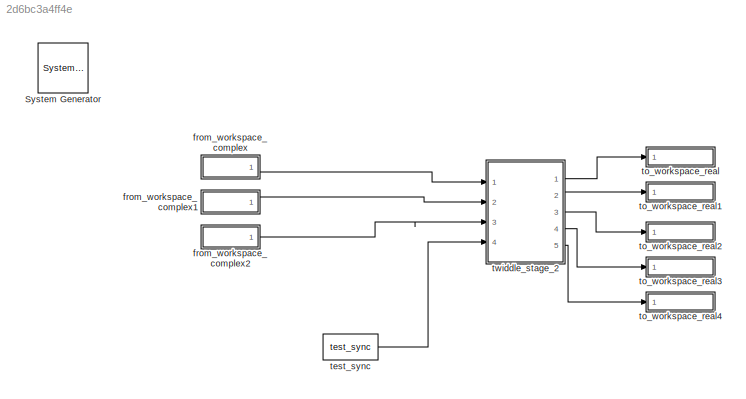
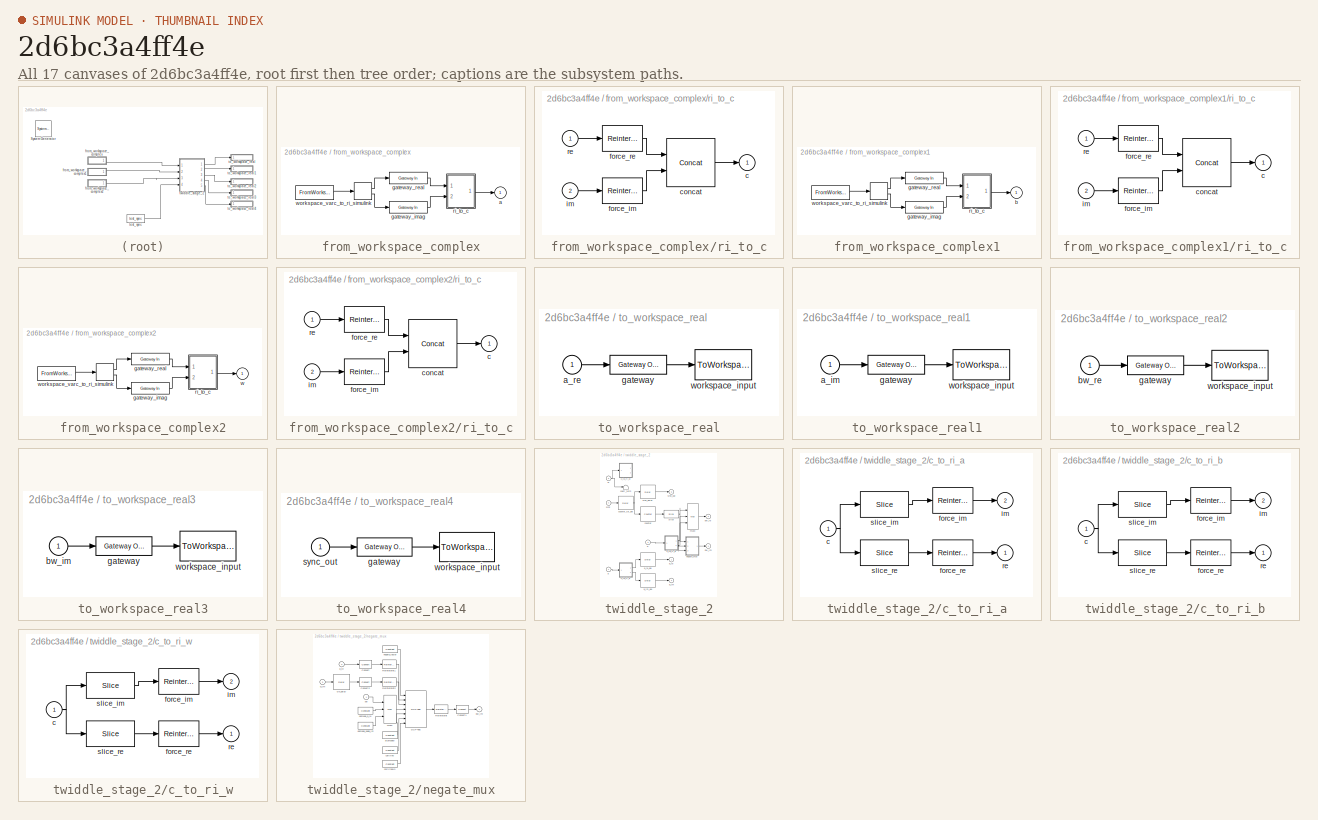
[diagram: thumbnail index - all 17 canvases of the model, root first then tree order]
MODEL slx_2d6bc3a4ff4e
KIND model
BLOCK [Reference]  System Generator  REF=xbsIndex_r4/ System Generator
  AttributesFormatString = System\nGenerator
  Impl_file = ISE Defaults
  Ports = []
  SourceBlock = xbsIndex_r4/ System Generator
  SourceType = Xilinx System Generator Block
  Synth_file = XST Defaults
  Tag = genX
  UserDataPersistent = on
  block_type = sysgen
  clock_wrapper = Clock Enables
  core_generation = According to Block Masks
  dbl_ovrd = According to Block Masks
  dcm_input_clock_period = 10
  deprecated_control = off
  directory = ./netlist
  eval_field = 0
  has_advanced_control = 0
  incr_netlist = off
  infoedit = System Generator
  package = fbg676
  part = xc7k325t
  proj_type = Project Navigator
  run_coregen = off
  sg_icon_stat = 50,50,0,0,token,white,0,58c5b5770fe5f7c311f53dbc6e73f0f6,right,,[ ],[ ]
  sg_mask_display = fprintf('','COMMENT: begin icon graphics');\npatch([0 50 50 0 0 ],[0 0 50 50 0 ],[1 1 1 ]);\npatch([1.6375 16.81 27.31 37.81 48.31 27.31 12.1375 1.6375 ],[36.655 36.655 47.155 36.655 47.155 47.155 47.155 36.655 ],[0.933333 0.203922 0.141176 ]);\npatch([12.1375 27.31 16.81 1.6375 12.1375 ],[26.155 26.155 36.655 36.655 26.155 ],[0.698039 0.0313725 0.219608 ]);\npatch([1.6375 16.81 27.31 12.1375 1.6375 ]...<+328ch>
  sggui_pos = -1,-1,-1,-1
  simulink_period = 1
  speed = -3
  synthesis_tool = XST
  sysclk_period = 10
  testbench = off
  trim_vbits = Everywhere in SubSystem
  xilinxfamily = Kintex7
BLOCK [SubSystem] from_workspace_complex
  FunctionWithSeparateData = off
  MaskHideContents = off
  MinAlgLoopOccurrences = off
  Opaque = off
  Ports = [0, 1]
  PropExecContextOutsideSubsystem = off
  RTWSystemCode = Auto
  RequestExecContextInheritance = off
  UserDataPersistent = on
BLOCK [Outport] from_workspace_complex/a
  IconDisplay = Port number
BLOCK [ComplexToRealImag] from_workspace_complex/c_to_ri_simulink
  Ports = [1, 2]
BLOCK [Reference] from_workspace_complex/gateway_imag  REF=xbsIndex_r4/Gateway In
  ADCChannel = '1'
  LOCs = {}
  Ports = [1, 1]
  SourceBlock = xbsIndex_r4/Gateway In
  SourceType = Xilinx Gateway In Block
  UseAsADC = off
  arith_type = Signed  (2's comp)
  bin_pt = 17
  block_type = gatewayin
  dbl_ovrd = off
  exp_width = 8
  frac_width = 24
  gui_display_data_type = Fixed-point
  has_advanced_control = 0
  hdl_port = on
  infoedit = Gateway in block.  Converts inputs of type Simulink integer, single, double and fixed-point to  Xilinx fixed-point or floating-point data type.<br><br>Hardware notes:  In hardware these blocks become top level input ports.  <repeated x6 — deduplicated; at blocks: gateway_imag, gateway_real>
  inherit_from_input = off
  locs_specified = off
  n_bits = 18
  overflow = Wrap
  period = 1
  preci_type = Single
  quantization = Truncate
  sg_icon_stat = 65,20,1,1,white,yellow,1,00d3666e,right,,[ ],[ ]
  sg_mask_display = fprintf('','COMMENT: begin icon graphics');\npatch([0 65 65 0 0 ],[0 0 20 20 0 ],[0.95 0.93 0.65 ]);\nplot([0 65 65 0 0 ],[0 0 20 20 0 ]);\npatch([27.55 30.44 32.44 34.44 36.44 32.44 29.55 27.55 ],[12.22 12.22 14.22 12.22 14.22 14.22 14.22 12.22 ],[1 1 1 ]);\npatch([29.55 32.44 30.44 27.55 29.55 ],[10.22 10.22 12.22 12.22 10.22 ],[0.985 0.979 0.895 ]);\npatch([27.55 30.44 32.44 29.55 27.55 ],[8.22 8.22...<+383ch>  <repeated x6 — deduplicated; at blocks: gateway_imag, gateway_real>
  sggui_pos = -1,-1,-1,-1
  timing_constraint = None
  xl_area = [0,0,0,0,0,0,0]
  xl_use_area = off
BLOCK [Reference] from_workspace_complex/gateway_real  REF=xbsIndex_r4/Gateway In
  ADCChannel = '1'
  LOCs = {}
  Ports = [1, 1]
  SourceBlock = xbsIndex_r4/Gateway In
  SourceType = Xilinx Gateway In Block
  UseAsADC = off
  arith_type = Signed  (2's comp)
  bin_pt = 17
  block_type = gatewayin
  dbl_ovrd = off
  exp_width = 8
  frac_width = 24
  gui_display_data_type = Fixed-point
  has_advanced_control = 0
  hdl_port = on
  inherit_from_input = off
  locs_specified = off
  n_bits = 18
  overflow = Wrap
  period = 1
  preci_type = Single
  quantization = Truncate
  sg_icon_stat = 65,20,1,1,white,yellow,1,00d3666e,right,,[ ],[ ]
  sggui_pos = -1,-1,-1,-1
  timing_constraint = None
  xl_area = [0,0,0,0,0,0,0]
  xl_use_area = off
BLOCK [SubSystem] from_workspace_complex/ri_to_c
  FunctionWithSeparateData = off
  MaskHideContents = off
  MinAlgLoopOccurrences = off
  Opaque = off
  Ports = [2, 1]
  PropExecContextOutsideSubsystem = off
  RTWSystemCode = Auto
  RequestExecContextInheritance = off
BLOCK [Outport] from_workspace_complex/ri_to_c/c
  IconDisplay = Port number
BLOCK [Reference] from_workspace_complex/ri_to_c/concat  REF=xbsIndex_r4/Concat
  Ports = [2, 1]
  SourceBlock = xbsIndex_r4/Concat
  SourceType = Xilinx Bus Concatenator Block
  block_type = concat
  dbl_ovrd = off
  has_advanced_control = 0
  infoedit = Concatenates two or more inputs.  Output will be cast to an unsigned value with the binary point at zero.
  num_inputs = 2
  sg_icon_stat = 60,60,2,1,white,blue,0,16398980,right,,[ ],[ ]
  sg_mask_display = fprintf('','COMMENT: begin icon graphics');\npatch([0 60 60 0 0 ],[0 0 60 60 0 ],[0.77 0.82 0.91 ]);\nplot([0 60 60 0 0 ],[0 0 60 60 0 ]);\npatch([12.2 23.76 31.76 39.76 47.76 31.76 20.2 12.2 ],[38.88 38.88 46.88 38.88 46.88 46.88 46.88 38.88 ],[1 1 1 ]);\npatch([20.2 31.76 23.76 12.2 20.2 ],[30.88 30.88 38.88 38.88 30.88 ],[0.931 0.946 0.973 ]);\npatch([12.2 23.76 31.76 20.2 12.2 ],[22.88 22.88 30.88 ...<+402ch>  <repeated x3 — deduplicated; at blocks: concat>
  sggui_pos = -1,-1,-1,-1
BLOCK [Reference] from_workspace_complex/ri_to_c/force_im  REF=xbsIndex_r4/Reinterpret
  Ports = [1, 1]
  SourceBlock = xbsIndex_r4/Reinterpret
  SourceType = Xilinx Type Reinterpreter Block
  arith_type = Unsigned
  bin_pt = 0
  block_type = reinterpret
  force_arith_type = on
  force_bin_pt = on
  has_advanced_control = 0
  infoedit = Changes signal type without altering the binary representation.   You can change the signal between signed and unsigned, and relocate the binary point.<br><br>Hardware notes: In hardware this block costs nothing.<br><br>Example:  Suppose the input is 6 bits wide, signed, with 2 fractional bits, and the output is forced to unsigned with 0 fractional bits.  Then an input of -2.0 (1110.00 in binary 2...<+58ch>  <repeated x15 — deduplicated; at blocks: force_im, force_re, Reinterpret, Reinterpret1, Reinterpret2>
  sg_icon_stat = 50,32,1,1,white,blue,0,6b04d0b0,right,,[ ],[ ]
  sg_mask_display = fprintf('','COMMENT: begin icon graphics');\npatch([0 50 50 0 0 ],[0 0 32 32 0 ],[0.77 0.82 0.91 ]);\nplot([0 50 50 0 0 ],[0 0 32 32 0 ]);\npatch([16.1 21.88 25.88 29.88 33.88 25.88 20.1 16.1 ],[20.44 20.44 24.44 20.44 24.44 24.44 24.44 20.44 ],[1 1 1 ]);\npatch([20.1 25.88 21.88 16.1 20.1 ],[16.44 16.44 20.44 20.44 16.44 ],[0.931 0.946 0.973 ]);\npatch([16.1 21.88 25.88 20.1 16.1 ],[12.44 12.44 16.44 ...<+294ch>  <repeated x15 — deduplicated; at blocks: force_im, force_re, Reinterpret, Reinterpret1, Reinterpret2>
  sggui_pos = -1,-1,-1,-1
BLOCK [Reference] from_workspace_complex/ri_to_c/force_re  REF=xbsIndex_r4/Reinterpret
  Ports = [1, 1]
  SourceBlock = xbsIndex_r4/Reinterpret
  SourceType = Xilinx Type Reinterpreter Block
  arith_type = Unsigned
  bin_pt = 0
  block_type = reinterpret
  force_arith_type = on
  force_bin_pt = on
  has_advanced_control = 0
  sg_icon_stat = 50,32,1,1,white,blue,0,6b04d0b0,right,,[ ],[ ]
  sggui_pos = -1,-1,-1,-1
BLOCK [Inport] from_workspace_complex/ri_to_c/im
  IconDisplay = Port number
  Port = 2
BLOCK [Inport] from_workspace_complex/ri_to_c/re
  IconDisplay = Port number
BLOCK [FromWorkspace] from_workspace_complex/workspace_var
  SampleTime = 0
  VariableName = a
  ZeroCross = on
BLOCK [SubSystem] from_workspace_complex1
  FunctionWithSeparateData = off
  MaskHideContents = off
  MinAlgLoopOccurrences = off
  Opaque = off
  Ports = [0, 1]
  PropExecContextOutsideSubsystem = off
  RTWSystemCode = Auto
  RequestExecContextInheritance = off
  UserDataPersistent = on
BLOCK [Outport] from_workspace_complex1/b
  IconDisplay = Port number
BLOCK [ComplexToRealImag] from_workspace_complex1/c_to_ri_simulink
  Ports = [1, 2]
BLOCK [Reference] from_workspace_complex1/gateway_imag  REF=xbsIndex_r4/Gateway In
  ADCChannel = '1'
  LOCs = {}
  Ports = [1, 1]
  SourceBlock = xbsIndex_r4/Gateway In
  SourceType = Xilinx Gateway In Block
  UseAsADC = off
  arith_type = Signed  (2's comp)
  bin_pt = 17
  block_type = gatewayin
  dbl_ovrd = off
  exp_width = 8
  frac_width = 24
  gui_display_data_type = Fixed-point
  has_advanced_control = 0
  hdl_port = on
  inherit_from_input = off
  locs_specified = off
  n_bits = 18
  overflow = Wrap
  period = 1
  preci_type = Single
  quantization = Truncate
  sg_icon_stat = 65,20,1,1,white,yellow,1,00d3666e,right,,[ ],[ ]
  sggui_pos = -1,-1,-1,-1
  timing_constraint = None
  xl_area = [0,0,0,0,0,0,0]
  xl_use_area = off
BLOCK [Reference] from_workspace_complex1/gateway_real  REF=xbsIndex_r4/Gateway In
  ADCChannel = '1'
  LOCs = {}
  Ports = [1, 1]
  SourceBlock = xbsIndex_r4/Gateway In
  SourceType = Xilinx Gateway In Block
  UseAsADC = off
  arith_type = Signed  (2's comp)
  bin_pt = 17
  block_type = gatewayin
  dbl_ovrd = off
  exp_width = 8
  frac_width = 24
  gui_display_data_type = Fixed-point
  has_advanced_control = 0
  hdl_port = on
  inherit_from_input = off
  locs_specified = off
  n_bits = 18
  overflow = Wrap
  period = 1
  preci_type = Single
  quantization = Truncate
  sg_icon_stat = 65,20,1,1,white,yellow,1,00d3666e,right,,[ ],[ ]
  sggui_pos = -1,-1,-1,-1
  timing_constraint = None
  xl_area = [0,0,0,0,0,0,0]
  xl_use_area = off
BLOCK [SubSystem] from_workspace_complex1/ri_to_c
  FunctionWithSeparateData = off
  MaskHideContents = off
  MinAlgLoopOccurrences = off
  Opaque = off
  Ports = [2, 1]
  PropExecContextOutsideSubsystem = off
  RTWSystemCode = Auto
  RequestExecContextInheritance = off
BLOCK [Outport] from_workspace_complex1/ri_to_c/c
  IconDisplay = Port number
BLOCK [Reference] from_workspace_complex1/ri_to_c/concat  REF=xbsIndex_r4/Concat
  Ports = [2, 1]
  SourceBlock = xbsIndex_r4/Concat
  SourceType = Xilinx Bus Concatenator Block
  block_type = concat
  dbl_ovrd = off
  has_advanced_control = 0
  infoedit = Concatenates two or more inputs.  Output will be cast to an unsigned value with the binary point at zero.
  num_inputs = 2
  sg_icon_stat = 60,60,2,1,white,blue,0,16398980,right,,[ ],[ ]
  sggui_pos = -1,-1,-1,-1
BLOCK [Reference] from_workspace_complex1/ri_to_c/force_im  REF=xbsIndex_r4/Reinterpret
  Ports = [1, 1]
  SourceBlock = xbsIndex_r4/Reinterpret
  SourceType = Xilinx Type Reinterpreter Block
  arith_type = Unsigned
  bin_pt = 0
  block_type = reinterpret
  force_arith_type = on
  force_bin_pt = on
  has_advanced_control = 0
  sg_icon_stat = 50,32,1,1,white,blue,0,6b04d0b0,right,,[ ],[ ]
  sggui_pos = -1,-1,-1,-1
BLOCK [Reference] from_workspace_complex1/ri_to_c/force_re  REF=xbsIndex_r4/Reinterpret
  Ports = [1, 1]
  SourceBlock = xbsIndex_r4/Reinterpret
  SourceType = Xilinx Type Reinterpreter Block
  arith_type = Unsigned
  bin_pt = 0
  block_type = reinterpret
  force_arith_type = on
  force_bin_pt = on
  has_advanced_control = 0
  sg_icon_stat = 50,32,1,1,white,blue,0,6b04d0b0,right,,[ ],[ ]
  sggui_pos = -1,-1,-1,-1
BLOCK [Inport] from_workspace_complex1/ri_to_c/im
  IconDisplay = Port number
  Port = 2
BLOCK [Inport] from_workspace_complex1/ri_to_c/re
  IconDisplay = Port number
BLOCK [FromWorkspace] from_workspace_complex1/workspace_var
  SampleTime = 0
  VariableName = b
  ZeroCross = on
BLOCK [SubSystem] from_workspace_complex2
  FunctionWithSeparateData = off
  MaskHideContents = off
  MinAlgLoopOccurrences = off
  Opaque = off
  Ports = [0, 1]
  PropExecContextOutsideSubsystem = off
  RTWSystemCode = Auto
  RequestExecContextInheritance = off
  UserDataPersistent = on
BLOCK [ComplexToRealImag] from_workspace_complex2/c_to_ri_simulink
  Ports = [1, 2]
BLOCK [Reference] from_workspace_complex2/gateway_imag  REF=xbsIndex_r4/Gateway In
  ADCChannel = '1'
  LOCs = {}
  Ports = [1, 1]
  SourceBlock = xbsIndex_r4/Gateway In
  SourceType = Xilinx Gateway In Block
  UseAsADC = off
  arith_type = Signed  (2's comp)
  bin_pt = 17
  block_type = gatewayin
  dbl_ovrd = off
  exp_width = 8
  frac_width = 24
  gui_display_data_type = Fixed-point
  has_advanced_control = 0
  hdl_port = on
  inherit_from_input = off
  locs_specified = off
  n_bits = 18
  overflow = Wrap
  period = 1
  preci_type = Single
  quantization = Truncate
  sg_icon_stat = 65,20,1,1,white,yellow,1,00d3666e,right,,[ ],[ ]
  sggui_pos = -1,-1,-1,-1
  timing_constraint = None
  xl_area = [0,0,0,0,0,0,0]
  xl_use_area = off
BLOCK [Reference] from_workspace_complex2/gateway_real  REF=xbsIndex_r4/Gateway In
  ADCChannel = '1'
  LOCs = {}
  Ports = [1, 1]
  SourceBlock = xbsIndex_r4/Gateway In
  SourceType = Xilinx Gateway In Block
  UseAsADC = off
  arith_type = Signed  (2's comp)
  bin_pt = 17
  block_type = gatewayin
  dbl_ovrd = off
  exp_width = 8
  frac_width = 24
  gui_display_data_type = Fixed-point
  has_advanced_control = 0
  hdl_port = on
  inherit_from_input = off
  locs_specified = off
  n_bits = 18
  overflow = Wrap
  period = 1
  preci_type = Single
  quantization = Truncate
  sg_icon_stat = 65,20,1,1,white,yellow,1,00d3666e,right,,[ ],[ ]
  sggui_pos = -1,-1,-1,-1
  timing_constraint = None
  xl_area = [0,0,0,0,0,0,0]
  xl_use_area = off
BLOCK [SubSystem] from_workspace_complex2/ri_to_c
  FunctionWithSeparateData = off
  MaskHideContents = off
  MinAlgLoopOccurrences = off
  Opaque = off
  Ports = [2, 1]
  PropExecContextOutsideSubsystem = off
  RTWSystemCode = Auto
  RequestExecContextInheritance = off
BLOCK [Outport] from_workspace_complex2/ri_to_c/c
  IconDisplay = Port number
BLOCK [Reference] from_workspace_complex2/ri_to_c/concat  REF=xbsIndex_r4/Concat
  Ports = [2, 1]
  SourceBlock = xbsIndex_r4/Concat
  SourceType = Xilinx Bus Concatenator Block
  block_type = concat
  dbl_ovrd = off
  has_advanced_control = 0
  infoedit = Concatenates two or more inputs.  Output will be cast to an unsigned value with the binary point at zero.
  num_inputs = 2
  sg_icon_stat = 60,60,2,1,white,blue,0,16398980,right,,[ ],[ ]
  sggui_pos = -1,-1,-1,-1
BLOCK [Reference] from_workspace_complex2/ri_to_c/force_im  REF=xbsIndex_r4/Reinterpret
  Ports = [1, 1]
  SourceBlock = xbsIndex_r4/Reinterpret
  SourceType = Xilinx Type Reinterpreter Block
  arith_type = Unsigned
  bin_pt = 0
  block_type = reinterpret
  force_arith_type = on
  force_bin_pt = on
  has_advanced_control = 0
  sg_icon_stat = 50,32,1,1,white,blue,0,6b04d0b0,right,,[ ],[ ]
  sggui_pos = -1,-1,-1,-1
BLOCK [Reference] from_workspace_complex2/ri_to_c/force_re  REF=xbsIndex_r4/Reinterpret
  Ports = [1, 1]
  SourceBlock = xbsIndex_r4/Reinterpret
  SourceType = Xilinx Type Reinterpreter Block
  arith_type = Unsigned
  bin_pt = 0
  block_type = reinterpret
  force_arith_type = on
  force_bin_pt = on
  has_advanced_control = 0
  sg_icon_stat = 50,32,1,1,white,blue,0,6b04d0b0,right,,[ ],[ ]
  sggui_pos = -1,-1,-1,-1
BLOCK [Inport] from_workspace_complex2/ri_to_c/im
  IconDisplay = Port number
  Port = 2
BLOCK [Inport] from_workspace_complex2/ri_to_c/re
  IconDisplay = Port number
BLOCK [Outport] from_workspace_complex2/w
  IconDisplay = Port number
BLOCK [FromWorkspace] from_workspace_complex2/workspace_var
  SampleTime = 0
  VariableName = w
  ZeroCross = on
BLOCK [Reference] test_sync  REF=simulink_xsg_bridge/test_sync
  Ports = [0, 1]
  SourceBlock = simulink_xsg_bridge/test_sync
  SourceType = SubSystem
BLOCK [SubSystem] to_workspace_real
  FunctionWithSeparateData = off
  MaskHideContents = off
  MinAlgLoopOccurrences = off
  Opaque = off
  Ports = [1]
  PropExecContextOutsideSubsystem = off
  RTWSystemCode = Auto
  RequestExecContextInheritance = off
  UserDataPersistent = on
BLOCK [Inport] to_workspace_real/a_re
  IconDisplay = Port number
BLOCK [Reference] to_workspace_real/gateway  REF=xbsIndex_r4/Gateway Out
  DACChannel = '1'
  LOCs = {}
  Ports = [1, 1]
  SourceBlock = xbsIndex_r4/Gateway Out
  SourceType = Xilinx Gateway Out Block
  UseAsDAC = off
  block_type = gatewayout
  has_advanced_control = 0
  hdl_port = off
  infoedit = Gateway out block.  Converts Xilinx fixed-point or floating-point type inputs into ouputs of type Simulink integer, single, double, or fixed-point.<br><br>Hardware notes:  In hardware these blocks become top level output ports or are discarded, depending on how they are configured.  <repeated x5 — deduplicated; at blocks: gateway>
  inherit_from_input = on
  locs_specified = off
  sg_icon_stat = 60,20,1,1,white,grey,1,632ec840,right,,[ ],[ ]
  sg_mask_display = fprintf('','COMMENT: begin icon graphics');\npatch([0 60 60 0 0 ],[0 0 20 20 0 ],[0.88 0.88 0.88 ]);\nplot([0 60 60 0 0 ],[0 0 20 20 0 ]);\npatch([25.55 28.44 30.44 32.44 34.44 30.44 27.55 25.55 ],[12.22 12.22 14.22 12.22 14.22 14.22 14.22 12.22 ],[1 1 1 ]);\npatch([27.55 30.44 28.44 25.55 27.55 ],[10.22 10.22 12.22 12.22 10.22 ],[0.964 0.964 0.964 ]);\npatch([25.55 28.44 30.44 27.55 25.55 ],[8.22 8.22...<+381ch>  <repeated x5 — deduplicated; at blocks: gateway>
  sggui_pos = -1,-1,-1,-1
  timing_constraint = None
  xl_area = [0,0,0,0,0,0,0]
  xl_use_area = off
BLOCK [ToWorkspace] to_workspace_real/workspace_input
  MaxDataPoints = inf
  Ports = [1]
  SampleTime = -1
  VariableName = a_re
BLOCK [SubSystem] to_workspace_real1
  FunctionWithSeparateData = off
  MaskHideContents = off
  MinAlgLoopOccurrences = off
  Opaque = off
  Ports = [1]
  PropExecContextOutsideSubsystem = off
  RTWSystemCode = Auto
  RequestExecContextInheritance = off
  UserDataPersistent = on
BLOCK [Inport] to_workspace_real1/a_im
  IconDisplay = Port number
BLOCK [Reference] to_workspace_real1/gateway  REF=xbsIndex_r4/Gateway Out
  DACChannel = '1'
  LOCs = {}
  Ports = [1, 1]
  SourceBlock = xbsIndex_r4/Gateway Out
  SourceType = Xilinx Gateway Out Block
  UseAsDAC = off
  block_type = gatewayout
  has_advanced_control = 0
  hdl_port = off
  inherit_from_input = on
  locs_specified = off
  sg_icon_stat = 60,20,1,1,white,grey,1,632ec840,right,,[ ],[ ]
  sggui_pos = -1,-1,-1,-1
  timing_constraint = None
  xl_area = [0,0,0,0,0,0,0]
  xl_use_area = off
BLOCK [ToWorkspace] to_workspace_real1/workspace_input
  MaxDataPoints = inf
  Ports = [1]
  SampleTime = -1
  VariableName = a_im
BLOCK [SubSystem] to_workspace_real2
  FunctionWithSeparateData = off
  MaskHideContents = off
  MinAlgLoopOccurrences = off
  Opaque = off
  Ports = [1]
  PropExecContextOutsideSubsystem = off
  RTWSystemCode = Auto
  RequestExecContextInheritance = off
  UserDataPersistent = on
BLOCK [Inport] to_workspace_real2/bw_re
  IconDisplay = Port number
BLOCK [Reference] to_workspace_real2/gateway  REF=xbsIndex_r4/Gateway Out
  DACChannel = '1'
  LOCs = {}
  Ports = [1, 1]
  SourceBlock = xbsIndex_r4/Gateway Out
  SourceType = Xilinx Gateway Out Block
  UseAsDAC = off
  block_type = gatewayout
  has_advanced_control = 0
  hdl_port = off
  inherit_from_input = on
  locs_specified = off
  sg_icon_stat = 60,20,1,1,white,grey,1,632ec840,right,,[ ],[ ]
  sggui_pos = -1,-1,-1,-1
  timing_constraint = None
  xl_area = [0,0,0,0,0,0,0]
  xl_use_area = off
BLOCK [ToWorkspace] to_workspace_real2/workspace_input
  MaxDataPoints = inf
  Ports = [1]
  SampleTime = -1
  VariableName = bw_re
BLOCK [SubSystem] to_workspace_real3
  FunctionWithSeparateData = off
  MaskHideContents = off
  MinAlgLoopOccurrences = off
  Opaque = off
  Ports = [1]
  PropExecContextOutsideSubsystem = off
  RTWSystemCode = Auto
  RequestExecContextInheritance = off
  UserDataPersistent = on
BLOCK [Inport] to_workspace_real3/bw_im
  IconDisplay = Port number
BLOCK [Reference] to_workspace_real3/gateway  REF=xbsIndex_r4/Gateway Out
  DACChannel = '1'
  LOCs = {}
  Ports = [1, 1]
  SourceBlock = xbsIndex_r4/Gateway Out
  SourceType = Xilinx Gateway Out Block
  UseAsDAC = off
  block_type = gatewayout
  has_advanced_control = 0
  hdl_port = off
  inherit_from_input = on
  locs_specified = off
  sg_icon_stat = 60,20,1,1,white,grey,1,632ec840,right,,[ ],[ ]
  sggui_pos = -1,-1,-1,-1
  timing_constraint = None
  xl_area = [0,0,0,0,0,0,0]
  xl_use_area = off
BLOCK [ToWorkspace] to_workspace_real3/workspace_input
  MaxDataPoints = inf
  Ports = [1]
  SampleTime = -1
  VariableName = bw_im
BLOCK [SubSystem] to_workspace_real4
  FunctionWithSeparateData = off
  MaskHideContents = off
  MinAlgLoopOccurrences = off
  Opaque = off
  Ports = [1]
  PropExecContextOutsideSubsystem = off
  RTWSystemCode = Auto
  RequestExecContextInheritance = off
  UserDataPersistent = on
BLOCK [Reference] to_workspace_real4/gateway  REF=xbsIndex_r4/Gateway Out
  DACChannel = '1'
  LOCs = {}
  Ports = [1, 1]
  SourceBlock = xbsIndex_r4/Gateway Out
  SourceType = Xilinx Gateway Out Block
  UseAsDAC = off
  block_type = gatewayout
  has_advanced_control = 0
  hdl_port = off
  inherit_from_input = on
  locs_specified = off
  sg_icon_stat = 60,20,1,1,white,grey,1,632ec840,right,,[ ],[ ]
  sggui_pos = -1,-1,-1,-1
  timing_constraint = None
  xl_area = [0,0,0,0,0,0,0]
  xl_use_area = off
BLOCK [Inport] to_workspace_real4/sync_out
  IconDisplay = Port number
BLOCK [ToWorkspace] to_workspace_real4/workspace_input
  MaxDataPoints = inf
  Ports = [1]
  SampleTime = -1
  VariableName = sync_out
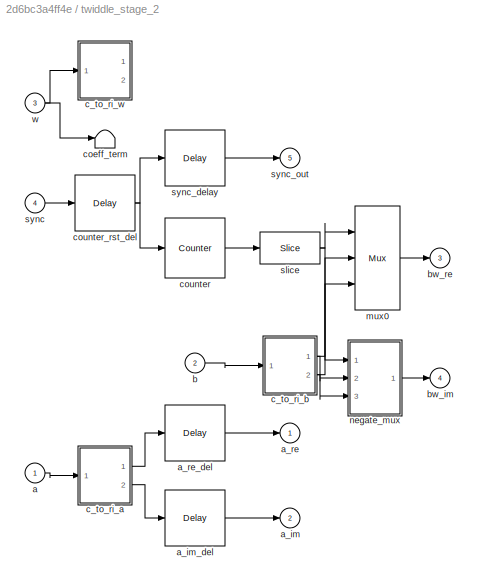
BLOCK [SubSystem] twiddle_stage_2
  AttributesFormatString = twiddle_stage_2
  FunctionWithSeparateData = off
  MaskHideContents = off
  MinAlgLoopOccurrences = off
  Opaque = off
  Ports = [4, 5]
  PropExecContextOutsideSubsystem = off
  RTWSystemCode = Auto
  RequestExecContextInheritance = off
BLOCK [Inport] twiddle_stage_2/a
  IconDisplay = Port number
BLOCK [Outport] twiddle_stage_2/a_im
  IconDisplay = Port number
  Port = 2
BLOCK [Reference] twiddle_stage_2/a_im_del  REF=xbsIndex_r4/Delay
  Ports = [1, 1]
  SourceBlock = xbsIndex_r4/Delay
  SourceType = Xilinx Delay Block
  block_type = delay
  dbl_ovrd = off
  en = off
  has_advanced_control = 0
  infoedit = Hardware notes: A delay line is a chain, each link of which is an SRL16 followed by a flip-flop.
  infoeditControl = Selection of Reset will increase slice count due to use of real FFs and instead of SRLs
  latency = 3
  reg_retiming = on
  rst = off
  sg_icon_stat = 60,56,1,1,white,blue,0,83e6bb61,right,,[ ],[ ]
  sg_mask_display = fprintf('','COMMENT: begin icon graphics');\npatch([0 60 60 0 0 ],[0 0 56 56 0 ],[0.77 0.82 0.91 ]);\nplot([0 60 60 0 0 ],[0 0 56 56 0 ]);\npatch([12.2 23.76 31.76 39.76 47.76 31.76 20.2 12.2 ],[36.88 36.88 44.88 36.88 44.88 44.88 44.88 36.88 ],[1 1 1 ]);\npatch([20.2 31.76 23.76 12.2 20.2 ],[28.88 28.88 36.88 36.88 28.88 ],[0.931 0.946 0.973 ]);\npatch([12.2 23.76 31.76 20.2 12.2 ],[20.88 20.88 28.88 ...<+308ch>  <repeated x5 — deduplicated; at blocks: a_im_del, a_re_del, counter_rst_del, cin_delay, sync_delay>
  sggui_pos = -1,-1,-1,-1
  xl_area = [0,0,0,0,0,0,0]
  xl_use_area = off
BLOCK [Outport] twiddle_stage_2/a_re
  IconDisplay = Port number
BLOCK [Reference] twiddle_stage_2/a_re_del  REF=xbsIndex_r4/Delay
  Ports = [1, 1]
  SourceBlock = xbsIndex_r4/Delay
  SourceType = Xilinx Delay Block
  block_type = delay
  dbl_ovrd = off
  en = off
  has_advanced_control = 0
  infoedit = Hardware notes: A delay line is a chain, each link of which is an SRL16 followed by a flip-flop.
  infoeditControl = Selection of Reset will increase slice count due to use of real FFs and instead of SRLs
  latency = 3
  reg_retiming = on
  rst = off
  sg_icon_stat = 60,56,1,1,white,blue,0,83e6bb61,right,,[ ],[ ]
  sggui_pos = -1,-1,-1,-1
  xl_area = [0,0,0,0,0,0,0]
  xl_use_area = off
BLOCK [Inport] twiddle_stage_2/b
  IconDisplay = Port number
  Port = 2
BLOCK [Outport] twiddle_stage_2/bw_im
  IconDisplay = Port number
  Port = 4
BLOCK [Outport] twiddle_stage_2/bw_re
  IconDisplay = Port number
  Port = 3
BLOCK [SubSystem] twiddle_stage_2/c_to_ri_a
  FunctionWithSeparateData = off
  MaskHideContents = off
  MinAlgLoopOccurrences = off
  Opaque = off
  Ports = [1, 2]
  PropExecContextOutsideSubsystem = off
  RTWSystemCode = Auto
  RequestExecContextInheritance = off
BLOCK [Inport] twiddle_stage_2/c_to_ri_a/c
  IconDisplay = Port number
BLOCK [Reference] twiddle_stage_2/c_to_ri_a/force_im  REF=xbsIndex_r4/Reinterpret
  Ports = [1, 1]
  SourceBlock = xbsIndex_r4/Reinterpret
  SourceType = Xilinx Type Reinterpreter Block
  arith_type = Signed  (2's comp)
  bin_pt = 17
  block_type = reinterpret
  force_arith_type = on
  force_bin_pt = on
  has_advanced_control = 0
  sg_icon_stat = 50,32,1,1,white,blue,0,6b04d0b0,right,,[ ],[ ]
  sggui_pos = -1,-1,-1,-1
BLOCK [Reference] twiddle_stage_2/c_to_ri_a/force_re  REF=xbsIndex_r4/Reinterpret
  Ports = [1, 1]
  SourceBlock = xbsIndex_r4/Reinterpret
  SourceType = Xilinx Type Reinterpreter Block
  arith_type = Signed  (2's comp)
  bin_pt = 17
  block_type = reinterpret
  force_arith_type = on
  force_bin_pt = on
  has_advanced_control = 0
  sg_icon_stat = 50,32,1,1,white,blue,0,6b04d0b0,right,,[ ],[ ]
  sggui_pos = -1,-1,-1,-1
BLOCK [Outport] twiddle_stage_2/c_to_ri_a/im
  IconDisplay = Port number
  Port = 2
BLOCK [Outport] twiddle_stage_2/c_to_ri_a/re
  IconDisplay = Port number
BLOCK [Reference] twiddle_stage_2/c_to_ri_a/slice_im  REF=xbsIndex_r4/Slice
  Ports = [1, 1]
  SourceBlock = xbsIndex_r4/Slice
  SourceType = Xilinx Bit Slice Extractor Block
  base0 = LSB of Input
  base1 = MSB of Input
  bit0 = 0
  bit1 = 0
  block_type = slice
  boolean_output = off
  dbl_ovrd = off
  has_advanced_control = 0
  infoedit = Extracts a given range of bits from each input sample and presents it at the output.  The output type is ordinarily unsigned with binary point at zero, but can be Boolean when the slice is one bit wide.<br><br>Hardware notes: In hardware this block costs nothing.  <repeated x7 — deduplicated; at blocks: slice_im, slice_re, slice>
  mode = Lower Bit Location + Width
  nbits = 18
  sg_icon_stat = 60,32,1,1,white,blue,0,1fd851a7,right,,[ ],[ ]
  sg_mask_display = fprintf('','COMMENT: begin icon graphics');\npatch([0 60 60 0 0 ],[0 0 32 32 0 ],[0.77 0.82 0.91 ]);\nplot([0 60 60 0 0 ],[0 0 32 32 0 ]);\npatch([21.1 26.88 30.88 34.88 38.88 30.88 25.1 21.1 ],[20.44 20.44 24.44 20.44 24.44 24.44 24.44 20.44 ],[1 1 1 ]);\npatch([25.1 30.88 26.88 21.1 25.1 ],[16.44 16.44 20.44 20.44 16.44 ],[0.931 0.946 0.973 ]);\npatch([21.1 26.88 30.88 25.1 21.1 ],[12.44 12.44 16.44 ...<+304ch>  <repeated x7 — deduplicated; at blocks: slice_im, slice_re, slice>
  sggui_pos = -1,-1,-1,-1
BLOCK [Reference] twiddle_stage_2/c_to_ri_a/slice_re  REF=xbsIndex_r4/Slice
  Ports = [1, 1]
  SourceBlock = xbsIndex_r4/Slice
  SourceType = Xilinx Bit Slice Extractor Block
  base0 = LSB of Input
  base1 = MSB of Input
  bit0 = 0
  bit1 = 0
  block_type = slice
  boolean_output = off
  dbl_ovrd = off
  has_advanced_control = 0
  mode = Upper Bit Location + Width
  nbits = 18
  sg_icon_stat = 60,32,1,1,white,blue,0,1fd851a7,right,,[ ],[ ]
  sggui_pos = -1,-1,-1,-1
BLOCK [SubSystem] twiddle_stage_2/c_to_ri_b
  FunctionWithSeparateData = off
  MaskHideContents = off
  MinAlgLoopOccurrences = off
  Opaque = off
  Ports = [1, 2]
  PropExecContextOutsideSubsystem = off
  RTWSystemCode = Auto
  RequestExecContextInheritance = off
BLOCK [Inport] twiddle_stage_2/c_to_ri_b/c
  IconDisplay = Port number
BLOCK [Reference] twiddle_stage_2/c_to_ri_b/force_im  REF=xbsIndex_r4/Reinterpret
  Ports = [1, 1]
  SourceBlock = xbsIndex_r4/Reinterpret
  SourceType = Xilinx Type Reinterpreter Block
  arith_type = Signed  (2's comp)
  bin_pt = 17
  block_type = reinterpret
  force_arith_type = on
  force_bin_pt = on
  has_advanced_control = 0
  sg_icon_stat = 50,32,1,1,white,blue,0,6b04d0b0,right,,[ ],[ ]
  sggui_pos = -1,-1,-1,-1
BLOCK [Reference] twiddle_stage_2/c_to_ri_b/force_re  REF=xbsIndex_r4/Reinterpret
  Ports = [1, 1]
  SourceBlock = xbsIndex_r4/Reinterpret
  SourceType = Xilinx Type Reinterpreter Block
  arith_type = Signed  (2's comp)
  bin_pt = 17
  block_type = reinterpret
  force_arith_type = on
  force_bin_pt = on
  has_advanced_control = 0
  sg_icon_stat = 50,32,1,1,white,blue,0,6b04d0b0,right,,[ ],[ ]
  sggui_pos = -1,-1,-1,-1
BLOCK [Outport] twiddle_stage_2/c_to_ri_b/im
  IconDisplay = Port number
  Port = 2
BLOCK [Outport] twiddle_stage_2/c_to_ri_b/re
  IconDisplay = Port number
BLOCK [Reference] twiddle_stage_2/c_to_ri_b/slice_im  REF=xbsIndex_r4/Slice
  Ports = [1, 1]
  SourceBlock = xbsIndex_r4/Slice
  SourceType = Xilinx Bit Slice Extractor Block
  base0 = LSB of Input
  base1 = MSB of Input
  bit0 = 0
  bit1 = 0
  block_type = slice
  boolean_output = off
  dbl_ovrd = off
  has_advanced_control = 0
  mode = Lower Bit Location + Width
  nbits = 18
  sg_icon_stat = 60,32,1,1,white,blue,0,1fd851a7,right,,[ ],[ ]
  sggui_pos = -1,-1,-1,-1
BLOCK [Reference] twiddle_stage_2/c_to_ri_b/slice_re  REF=xbsIndex_r4/Slice
  Ports = [1, 1]
  SourceBlock = xbsIndex_r4/Slice
  SourceType = Xilinx Bit Slice Extractor Block
  base0 = LSB of Input
  base1 = MSB of Input
  bit0 = 0
  bit1 = 0
  block_type = slice
  boolean_output = off
  dbl_ovrd = off
  has_advanced_control = 0
  mode = Upper Bit Location + Width
  nbits = 18
  sg_icon_stat = 60,32,1,1,white,blue,0,1fd851a7,right,,[ ],[ ]
  sggui_pos = -1,-1,-1,-1
BLOCK [SubSystem] twiddle_stage_2/c_to_ri_w
  FunctionWithSeparateData = off
  MaskHideContents = off
  MinAlgLoopOccurrences = off
  Opaque = off
  Ports = [1, 2]
  PropExecContextOutsideSubsystem = off
  RTWSystemCode = Auto
  RequestExecContextInheritance = off
BLOCK [Inport] twiddle_stage_2/c_to_ri_w/c
  IconDisplay = Port number
BLOCK [Reference] twiddle_stage_2/c_to_ri_w/force_im  REF=xbsIndex_r4/Reinterpret
  Ports = [1, 1]
  SourceBlock = xbsIndex_r4/Reinterpret
  SourceType = Xilinx Type Reinterpreter Block
  arith_type = Signed  (2's comp)
  bin_pt = 17
  block_type = reinterpret
  force_arith_type = on
  force_bin_pt = on
  has_advanced_control = 0
  sg_icon_stat = 50,32,1,1,white,blue,0,6b04d0b0,right,,[ ],[ ]
  sggui_pos = -1,-1,-1,-1
BLOCK [Reference] twiddle_stage_2/c_to_ri_w/force_re  REF=xbsIndex_r4/Reinterpret
  Ports = [1, 1]
  SourceBlock = xbsIndex_r4/Reinterpret
  SourceType = Xilinx Type Reinterpreter Block
  arith_type = Signed  (2's comp)
  bin_pt = 17
  block_type = reinterpret
  force_arith_type = on
  force_bin_pt = on
  has_advanced_control = 0
  sg_icon_stat = 50,32,1,1,white,blue,0,6b04d0b0,right,,[ ],[ ]
  sggui_pos = -1,-1,-1,-1
BLOCK [Outport] twiddle_stage_2/c_to_ri_w/im
  IconDisplay = Port number
  Port = 2
BLOCK [Outport] twiddle_stage_2/c_to_ri_w/re
  IconDisplay = Port number
BLOCK [Reference] twiddle_stage_2/c_to_ri_w/slice_im  REF=xbsIndex_r4/Slice
  Ports = [1, 1]
  SourceBlock = xbsIndex_r4/Slice
  SourceType = Xilinx Bit Slice Extractor Block
  base0 = LSB of Input
  base1 = MSB of Input
  bit0 = 0
  bit1 = 0
  block_type = slice
  boolean_output = off
  dbl_ovrd = off
  has_advanced_control = 0
  mode = Lower Bit Location + Width
  nbits = 18
  sg_icon_stat = 60,32,1,1,white,blue,0,1fd851a7,right,,[ ],[ ]
  sggui_pos = -1,-1,-1,-1
BLOCK [Reference] twiddle_stage_2/c_to_ri_w/slice_re  REF=xbsIndex_r4/Slice
  Ports = [1, 1]
  SourceBlock = xbsIndex_r4/Slice
  SourceType = Xilinx Bit Slice Extractor Block
  base0 = LSB of Input
  base1 = MSB of Input
  bit0 = 0
  bit1 = 0
  block_type = slice
  boolean_output = off
  dbl_ovrd = off
  has_advanced_control = 0
  mode = Upper Bit Location + Width
  nbits = 18
  sg_icon_stat = 60,32,1,1,white,blue,0,1fd851a7,right,,[ ],[ ]
  sggui_pos = -1,-1,-1,-1
BLOCK [Terminator] twiddle_stage_2/coeff_term
BLOCK [Reference] twiddle_stage_2/counter  REF=xbsIndex_r4/Counter
  Ports = [1, 1]
  SourceBlock = xbsIndex_r4/Counter
  SourceType = Xilinx Counter Block
  arith_type = Unsigned
  bin_pt = 0
  block_type = counter
  cnt_by_val = 1
  cnt_to = Inf
  cnt_type = Free Running
  dbl_ovrd = off
  en = off
  explicit_period = on
  has_advanced_control = 0
  implementation = Fabric
  infoedit = Hardware notes: Free running counters are the least expensive in hardware.  A count limited counter is implemented by combining a counter with a comparator.
  load_pin = off
  n_bits = 4
  operation = Up
  period = 1
  rst = on
  sg_icon_stat = 60,60,1,1,white,blue,0,803eba70,right,,[ ],[ ]
  sg_mask_display = fprintf('','COMMENT: begin icon graphics');\npatch([0 60 60 0 0 ],[0 0 60 60 0 ],[0.77 0.82 0.91 ]);\nplot([0 60 60 0 0 ],[0 0 60 60 0 ]);\npatch([12.2 23.76 31.76 39.76 47.76 31.76 20.2 12.2 ],[38.88 38.88 46.88 38.88 46.88 46.88 46.88 38.88 ],[1 1 1 ]);\npatch([20.2 31.76 23.76 12.2 20.2 ],[30.88 30.88 38.88 38.88 30.88 ],[0.931 0.946 0.973 ]);\npatch([12.2 23.76 31.76 20.2 12.2 ],[22.88 22.88 30.88 ...<+365ch>
  sggui_pos = -1,-1,-1,-1
  start_count = 0
  use_behavioral_HDL = on
  xl_area = [0,0,0,0,0,0,0]
  xl_use_area = off
BLOCK [Reference] twiddle_stage_2/counter_rst_del  REF=xbsIndex_r4/Delay
  Ports = [1, 1]
  SourceBlock = xbsIndex_r4/Delay
  SourceType = Xilinx Delay Block
  block_type = delay
  dbl_ovrd = off
  en = off
  has_advanced_control = 0
  infoedit = Hardware notes: A delay line is a chain, each link of which is an SRL16 followed by a flip-flop.
  infoeditControl = Selection of Reset will increase slice count due to use of real FFs and instead of SRLs
  latency = 0
  reg_retiming = on
  rst = off
  sg_icon_stat = 60,56,1,1,white,blue,0,24450e6f,right,,[ ],[ ]
  sggui_pos = -1,-1,-1,-1
  xl_area = [0,0,0,0,0,0,0]
  xl_use_area = off
BLOCK [Reference] twiddle_stage_2/mux0  REF=xbsIndex_r4/Mux
  Ports = [3, 1]
  SourceBlock = xbsIndex_r4/Mux
  SourceType = Xilinx Bus Multiplexer Block
  arith_type = Unsigned
  bin_pt = 14
  block_type = mux
  dbl_ovrd = off
  en = off
  has_advanced_control = 0
  inputs = 2
  latency = 3
  n_bits = 16
  overflow = Wrap
  precision = Full
  quantization = Truncate
  sg_icon_stat = 45,104,3,1,white,blue,3,f0a29c7b,right,,[ ],[ ]
  sg_mask_display = fprintf('','COMMENT: begin icon graphics');\npatch([0 45 45 0 0 ],[0 14.8571 89.1429 104 0 ],[0.77 0.82 0.91 ]);\nplot([0 45 45 0 0 ],[0 14.8571 89.1429 104 0 ]);\npatch([8.65 17.32 23.32 29.32 35.32 23.32 14.65 8.65 ],[58.66 58.66 64.66 58.66 64.66 64.66 64.66 58.66 ],[1 1 1 ]);\npatch([14.65 23.32 17.32 8.65 14.65 ],[52.66 52.66 58.66 58.66 52.66 ],[0.931 0.946 0.973 ]);\npatch([8.65 17.32 23.32 14.6...<+474ch>
  sggui_pos = -1,-1,-1,-1
  xl_area = [0,0,0,0,0,0,0]
  xl_use_area = off
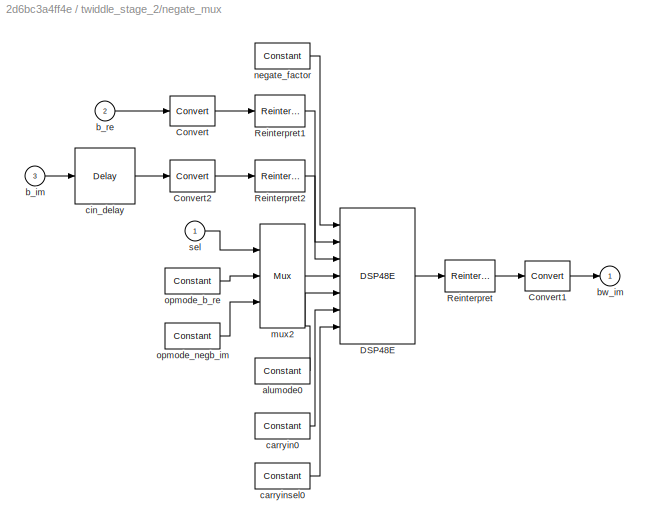
BLOCK [SubSystem] twiddle_stage_2/negate_mux
  FunctionWithSeparateData = off
  MaskHideContents = off
  MinAlgLoopOccurrences = off
  Opaque = off
  Ports = [3, 1]
  PropExecContextOutsideSubsystem = off
  RTWSystemCode = Auto
  RequestExecContextInheritance = off
BLOCK [Reference] twiddle_stage_2/negate_mux/Convert  REF=xbsIndex_r4/Convert
  Ports = [1, 1]
  SourceBlock = xbsIndex_r4/Convert
  SourceType = Xilinx Type Converter Block
  arith_type = Signed  (2's comp)
  bin_pt = 17
  block_type = convert
  dbl_ovrd = off
  en = off
  exp_bits = 8
  float_type = Single
  fraction_bits = 24
  gui_display_data_type = Fixed-point
  has_advanced_control = 0
  infoedit = Hardware notes: rounding and saturating require hardware resources; truncating and wrapping do not.
  latency = 0
  n_bits = 18
  overflow = Wrap
  pipeline = off
  quantization = Truncate
  sg_icon_stat = 45,30,1,1,white,blue,0,edca21da,right,,[ ],[ ]
  sg_mask_display = fprintf('','COMMENT: begin icon graphics');\npatch([0 45 45 0 0 ],[0 0 30 30 0 ],[0.77 0.82 0.91 ]);\nplot([0 45 45 0 0 ],[0 0 30 30 0 ]);\npatch([13.1 18.88 22.88 26.88 30.88 22.88 17.1 13.1 ],[19.44 19.44 23.44 19.44 23.44 23.44 23.44 19.44 ],[1 1 1 ]);\npatch([17.1 22.88 18.88 13.1 17.1 ],[15.44 15.44 19.44 19.44 15.44 ],[0.931 0.946 0.973 ]);\npatch([13.1 18.88 22.88 17.1 13.1 ],[11.44 11.44 15.44 ...<+303ch>
  sggui_pos = -1,-1,-1,-1
  xl_area = [0,0,0,0,0,0,0]
  xl_use_area = off
BLOCK [Reference] twiddle_stage_2/negate_mux/Convert1  REF=xbsIndex_r4/Convert
  Ports = [1, 1]
  SourceBlock = xbsIndex_r4/Convert
  SourceType = Xilinx Type Converter Block
  arith_type = Signed  (2's comp)
  bin_pt = 17
  block_type = convert
  dbl_ovrd = off
  en = off
  exp_bits = 8
  float_type = Single
  fraction_bits = 24
  gui_display_data_type = Fixed-point
  has_advanced_control = 0
  infoedit = Hardware notes: rounding and saturating require hardware resources; truncating and wrapping do not.
  latency = 0
  n_bits = 18
  overflow = Wrap
  pipeline = off
  quantization = Truncate
  sg_icon_stat = 45,30,1,1,white,blue,0,edca21da,right,,[ ],[ ]
  sg_mask_display = fprintf('','COMMENT: begin icon graphics');\npatch([0 45 45 0 0 ],[0 0 30 30 0 ],[0.77 0.82 0.91 ]);\nplot([0 45 45 0 0 ],[0 0 30 30 0 ]);\npatch([13.1 18.88 22.88 26.88 30.88 22.88 17.1 13.1 ],[19.44 19.44 23.44 19.44 23.44 23.44 23.44 19.44 ],[1 1 1 ]);\npatch([17.1 22.88 18.88 13.1 17.1 ],[15.44 15.44 19.44 19.44 15.44 ],[0.931 0.946 0.973 ]);\npatch([13.1 18.88 22.88 17.1 13.1 ],[11.44 11.44 15.44 ...<+303ch>
  sggui_pos = -1,-1,-1,-1
  xl_area = [0,0,0,0,0,0,0]
  xl_use_area = off
BLOCK [Reference] twiddle_stage_2/negate_mux/Convert2  REF=xbsIndex_r4/Convert
  Ports = [1, 1]
  SourceBlock = xbsIndex_r4/Convert
  SourceType = Xilinx Type Converter Block
  arith_type = Signed  (2's comp)
  bin_pt = 17
  block_type = convert
  dbl_ovrd = off
  en = off
  exp_bits = 8
  float_type = Single
  fraction_bits = 24
  gui_display_data_type = Fixed-point
  has_advanced_control = 0
  infoedit = Hardware notes: rounding and saturating require hardware resources; truncating and wrapping do not.
  latency = 0
  n_bits = 48
  overflow = Wrap
  pipeline = off
  quantization = Truncate
  sg_icon_stat = 45,32,1,1,white,blue,0,edca21da,right,,[ ],[ ]
  sg_mask_display = fprintf('','COMMENT: begin icon graphics');\npatch([0 45 45 0 0 ],[0 0 32 32 0 ],[0.77 0.82 0.91 ]);\nplot([0 45 45 0 0 ],[0 0 32 32 0 ]);\npatch([13.1 18.88 22.88 26.88 30.88 22.88 17.1 13.1 ],[20.44 20.44 24.44 20.44 24.44 24.44 24.44 20.44 ],[1 1 1 ]);\npatch([17.1 22.88 18.88 13.1 17.1 ],[16.44 16.44 20.44 20.44 16.44 ],[0.931 0.946 0.973 ]);\npatch([13.1 18.88 22.88 17.1 13.1 ],[12.44 12.44 16.44 ...<+303ch>
  sggui_pos = -1,-1,-1,-1
  xl_area = [0,0,0,0,0,0,0]
  xl_use_area = off
BLOCK [Reference] twiddle_stage_2/negate_mux/DSP48E  REF=xbsIndex_r4/DSP48E
  Ports = [7, 1]
  SourceBlock = xbsIndex_r4/DSP48E
  SourceType = Xilinx DSP48E Block
  addsub_mode = ONE48
  block_type = dsp48e
  en_a1 = off
  en_a2 = off
  en_all = off
  en_alumode = off
  en_b1 = off
  en_b2 = off
  en_c = off
  en_carry_in = off
  en_ctrl = off
  en_mult = off
  en_multcarryin = off
  en_p = off
  has_advanced_control = 0
  mask_from_creg = on
  pattern = '000000000000'
  pattern_from_creg = on
  pattern_mask = '000000000000'
  pipeline_a = 1
  pipeline_acout = 1
  pipeline_alumode = on
  pipeline_b = 1
  pipeline_bcout = 1
  pipeline_c = on
  pipeline_carryin = on
  pipeline_carryinsel = on
  pipeline_mult = on
  pipeline_opmode = on
  pipeline_p = on
  reset_preg = off
  rst_a = off
  rst_all = off
  rst_alumode = off
  rst_b = off
  rst_c = off
  rst_carry_in = off
  rst_ctrl = off
  rst_mult = off
  rst_p = off
  sel_rounding_mask = Select mask
  sg_icon_stat = 75,136,7,1,white,blue,0,51584ea8,right,,[ ],[ ]
  sg_mask_display = fprintf('','COMMENT: begin icon graphics');\npatch([0 75 75 0 0 ],[0 0 136 136 0 ],[0.77 0.82 0.91 ]);\nplot([0 75 75 0 0 ],[0 0 136 136 0 ]);\npatch([14.75 29.2 39.2 49.2 59.2 39.2 24.75 14.75 ],[79.1 79.1 89.1 79.1 89.1 89.1 89.1 79.1 ],[1 1 1 ]);\npatch([24.75 39.2 29.2 14.75 24.75 ],[69.1 69.1 79.1 79.1 69.1 ],[0.931 0.946 0.973 ]);\npatch([14.75 29.2 39.2 24.75 14.75 ],[59.1 59.1 69.1 69.1 59.1 ],...<+601ch>
  sggui_pos = -1,-1,-1,-1
  use_a = Direct from A Port
  use_acout = off
  use_b = Direct from B Port
  use_bcout = off
  use_carrycascin = off
  use_carrycascout = off
  use_carryout = off
  use_creg = on
  use_multsignin = off
  use_multsignout = off
  use_op = off
  use_overflow = off
  use_patternbdetect = off
  use_patterndetect = off
  use_pcin = off
  use_pcout = off
  use_synth_model = off
  use_underflow = off
  xl_area = [0,0,0,0,0,0,0]
  xl_use_area = off
  xl_useadderonly = off
BLOCK [Reference] twiddle_stage_2/negate_mux/Reinterpret  REF=xbsIndex_r4/Reinterpret
  Ports = [1, 1]
  SourceBlock = xbsIndex_r4/Reinterpret
  SourceType = Xilinx Type Reinterpreter Block
  arith_type = Signed  (2's comp)
  bin_pt = 17
  block_type = reinterpret
  force_arith_type = on
  force_bin_pt = on
  has_advanced_control = 0
  sg_icon_stat = 50,32,1,1,white,blue,0,6b04d0b0,right,,[ ],[ ]
  sggui_pos = -1,-1,-1,-1
BLOCK [Reference] twiddle_stage_2/negate_mux/Reinterpret1  REF=xbsIndex_r4/Reinterpret
  Ports = [1, 1]
  SourceBlock = xbsIndex_r4/Reinterpret
  SourceType = Xilinx Type Reinterpreter Block
  arith_type = Signed  (2's comp)
  bin_pt = 0
  block_type = reinterpret
  force_arith_type = on
  force_bin_pt = on
  has_advanced_control = 0
  sg_icon_stat = 50,32,1,1,white,blue,0,6b04d0b0,right,,[ ],[ ]
  sggui_pos = -1,-1,-1,-1
BLOCK [Reference] twiddle_stage_2/negate_mux/Reinterpret2  REF=xbsIndex_r4/Reinterpret
  Ports = [1, 1]
  SourceBlock = xbsIndex_r4/Reinterpret
  SourceType = Xilinx Type Reinterpreter Block
  arith_type = Signed  (2's comp)
  bin_pt = 0
  block_type = reinterpret
  force_arith_type = on
  force_bin_pt = on
  has_advanced_control = 0
  sg_icon_stat = 50,32,1,1,white,blue,0,6b04d0b0,right,,[ ],[ ]
  sggui_pos = -1,-1,-1,-1
BLOCK [Reference] twiddle_stage_2/negate_mux/alumode0  REF=xbsIndex_r4/Constant
  Ports = [0, 1]
  SourceBlock = xbsIndex_r4/Constant
  SourceType = Xilinx Constant Block Block
  arith_type = Unsigned
  bin_pt = 0
  block_type = constant
  carry = CIN
  const = 0
  dbl_ovrd = off
  dsp48_infoedit = The use of this block for DSP48 instructions is deprecated.  Please use the Opmode block.
  equ = P=C
  exp_width = 8
  explicit_period = on
  frac_width = 24
  gui_display_data_type = Fixed-point
  has_advanced_control = 0
  inp1 = P
  inp2 = PCIN>>17
  n_bits = 4
  opr = +
  opselect = C
  period = 1
  preci_type = Single
  sg_icon_stat = 55,26,0,1,white,blue,0,bf4ddd8b,right,,[ ],[ ]
  sg_mask_display = fprintf('','COMMENT: begin icon graphics');\npatch([0 55 55 0 0 ],[0 0 26 26 0 ],[0.77 0.82 0.91 ]);\nplot([0 55 55 0 0 ],[0 0 26 26 0 ]);\npatch([20.325 24.66 27.66 30.66 33.66 27.66 23.325 20.325 ],[16.33 16.33 19.33 16.33 19.33 19.33 19.33 16.33 ],[1 1 1 ]);\npatch([23.325 27.66 24.66 20.325 23.325 ],[13.33 13.33 16.33 16.33 13.33 ],[0.931 0.946 0.973 ]);\npatch([20.325 24.66 27.66 23.325 20.325 ],[...<+323ch>  <repeated x4 — deduplicated; at blocks: alumode0, carryin0, carryinsel0, opmode_negb_im>
  sggui_pos = -1,-1,-1,-1
BLOCK [Inport] twiddle_stage_2/negate_mux/b_im
  IconDisplay = Port number
  Port = 3
BLOCK [Inport] twiddle_stage_2/negate_mux/b_re
  IconDisplay = Port number
  Port = 2
BLOCK [Outport] twiddle_stage_2/negate_mux/bw_im
  IconDisplay = Port number
BLOCK [Reference] twiddle_stage_2/negate_mux/carryin0  REF=xbsIndex_r4/Constant
  Ports = [0, 1]
  SourceBlock = xbsIndex_r4/Constant
  SourceType = Xilinx Constant Block Block
  arith_type = Unsigned
  bin_pt = 0
  block_type = constant
  carry = CIN
  const = 0
  dbl_ovrd = off
  dsp48_infoedit = The use of this block for DSP48 instructions is deprecated.  Please use the Opmode block.
  equ = P=C
  exp_width = 8
  explicit_period = on
  frac_width = 24
  gui_display_data_type = Fixed-point
  has_advanced_control = 0
  inp1 = P
  inp2 = PCIN>>17
  n_bits = 1
  opr = +
  opselect = C
  period = 1
  preci_type = Single
  sg_icon_stat = 55,26,0,1,white,blue,0,bf4ddd8b,right,,[ ],[ ]
  sggui_pos = -1,-1,-1,-1
BLOCK [Reference] twiddle_stage_2/negate_mux/carryinsel0  REF=xbsIndex_r4/Constant
  Ports = [0, 1]
  SourceBlock = xbsIndex_r4/Constant
  SourceType = Xilinx Constant Block Block
  arith_type = Unsigned
  bin_pt = 0
  block_type = constant
  carry = CIN
  const = 0
  dbl_ovrd = off
  dsp48_infoedit = The use of this block for DSP48 instructions is deprecated.  Please use the Opmode block.
  equ = P=C
  exp_width = 8
  explicit_period = on
  frac_width = 24
  gui_display_data_type = Fixed-point
  has_advanced_control = 0
  inp1 = P
  inp2 = PCIN>>17
  n_bits = 3
  opr = +
  opselect = C
  period = 1
  preci_type = Single
  sg_icon_stat = 55,26,0,1,white,blue,0,bf4ddd8b,right,,[ ],[ ]
  sggui_pos = -1,-1,-1,-1
BLOCK [Reference] twiddle_stage_2/negate_mux/cin_delay  REF=xbsIndex_r4/Delay
  Ports = [1, 1]
  SourceBlock = xbsIndex_r4/Delay
  SourceType = Xilinx Delay Block
  block_type = delay
  dbl_ovrd = off
  en = off
  has_advanced_control = 0
  infoedit = Hardware notes: A delay line is a chain, each link of which is an SRL16 followed by a flip-flop.
  infoeditControl = Selection of Reset will increase slice count due to use of real FFs and instead of SRLs
  latency = 1
  reg_retiming = on
  rst = off
  sg_icon_stat = 60,56,1,1,white,blue,0,07b98262,right,,[ ],[ ]
  sggui_pos = -1,-1,-1,-1
  xl_area = [0,0,0,0,0,0,0]
  xl_use_area = off
BLOCK [Reference] twiddle_stage_2/negate_mux/mux2  REF=xbsIndex_r4/Mux
  Ports = [3, 1]
  SourceBlock = xbsIndex_r4/Mux
  SourceType = Xilinx Bus Multiplexer Block
  arith_type = Unsigned
  bin_pt = 14
  block_type = mux
  dbl_ovrd = off
  en = off
  has_advanced_control = 0
  inputs = 2
  latency = 1
  n_bits = 16
  overflow = Wrap
  precision = Full
  quantization = Truncate
  sg_icon_stat = 45,104,3,1,white,blue,3,a150fb03,right,,[ ],[ ]
  sg_mask_display = fprintf('','COMMENT: begin icon graphics');\npatch([0 45 45 0 0 ],[0 14.8571 89.1429 104 0 ],[0.77 0.82 0.91 ]);\nplot([0 45 45 0 0 ],[0 14.8571 89.1429 104 0 ]);\npatch([8.65 17.32 23.32 29.32 35.32 23.32 14.65 8.65 ],[58.66 58.66 64.66 58.66 64.66 64.66 64.66 58.66 ],[1 1 1 ]);\npatch([14.65 23.32 17.32 8.65 14.65 ],[52.66 52.66 58.66 58.66 52.66 ],[0.931 0.946 0.973 ]);\npatch([8.65 17.32 23.32 14.6...<+474ch>
  sggui_pos = -1,-1,-1,-1
  xl_area = [0,0,0,0,0,0,0]
  xl_use_area = off
BLOCK [Reference] twiddle_stage_2/negate_mux/negate_factor  REF=xbsIndex_r4/Constant
  Ports = [0, 1]
  SourceBlock = xbsIndex_r4/Constant
  SourceType = Xilinx Constant Block Block
  arith_type = Signed (2's comp)
  bin_pt = 0
  block_type = constant
  carry = CIN
  const = -1
  dbl_ovrd = off
  dsp48_infoedit = The use of this block for DSP48 instructions is deprecated.  Please use the Opmode block.
  equ = P=C
  exp_width = 8
  explicit_period = on
  frac_width = 24
  gui_display_data_type = Fixed-point
  has_advanced_control = 0
  inp1 = P
  inp2 = PCIN>>17
  n_bits = 30
  opr = +
  opselect = C
  period = 1
  preci_type = Single
  sg_icon_stat = 55,26,0,1,white,blue,0,43c97d40,right,,[ ],[ ]
  sg_mask_display = fprintf('','COMMENT: begin icon graphics');\npatch([0 55 55 0 0 ],[0 0 26 26 0 ],[0.77 0.82 0.91 ]);\nplot([0 55 55 0 0 ],[0 0 26 26 0 ]);\npatch([20.325 24.66 27.66 30.66 33.66 27.66 23.325 20.325 ],[16.33 16.33 19.33 16.33 19.33 19.33 19.33 16.33 ],[1 1 1 ]);\npatch([23.325 27.66 24.66 20.325 23.325 ],[13.33 13.33 16.33 16.33 13.33 ],[0.931 0.946 0.973 ]);\npatch([20.325 24.66 27.66 23.325 20.325 ],[...<+324ch>
  sggui_pos = -1,-1,-1,-1
BLOCK [Reference] twiddle_stage_2/negate_mux/opmode_b_re  REF=xbsIndex_r4/Constant
  Ports = [0, 1]
  SourceBlock = xbsIndex_r4/Constant
  SourceType = Xilinx Constant Block Block
  arith_type = Unsigned
  bin_pt = 0
  block_type = constant
  carry = CIN
  const = 12
  dbl_ovrd = off
  dsp48_infoedit = The use of this block for DSP48 instructions is deprecated.  Please use the Opmode block.
  equ = P=C
  exp_width = 8
  explicit_period = on
  frac_width = 24
  gui_display_data_type = Fixed-point
  has_advanced_control = 0
  inp1 = P
  inp2 = PCIN>>17
  n_bits = 7
  opr = +
  opselect = C
  period = 1
  preci_type = Single
  sg_icon_stat = 55,26,0,1,white,blue,0,9a294e94,right,,[ ],[ ]
  sg_mask_display = fprintf('','COMMENT: begin icon graphics');\npatch([0 55 55 0 0 ],[0 0 26 26 0 ],[0.77 0.82 0.91 ]);\nplot([0 55 55 0 0 ],[0 0 26 26 0 ]);\npatch([20.325 24.66 27.66 30.66 33.66 27.66 23.325 20.325 ],[16.33 16.33 19.33 16.33 19.33 19.33 19.33 16.33 ],[1 1 1 ]);\npatch([23.325 27.66 24.66 20.325 23.325 ],[13.33 13.33 16.33 16.33 13.33 ],[0.931 0.946 0.973 ]);\npatch([20.325 24.66 27.66 23.325 20.325 ],[...<+324ch>
  sggui_pos = -1,-1,-1,-1
BLOCK [Reference] twiddle_stage_2/negate_mux/opmode_negb_im  REF=xbsIndex_r4/Constant
  Ports = [0, 1]
  SourceBlock = xbsIndex_r4/Constant
  SourceType = Xilinx Constant Block Block
  arith_type = Unsigned
  bin_pt = 0
  block_type = constant
  carry = CIN
  const = 5
  dbl_ovrd = off
  dsp48_infoedit = The use of this block for DSP48 instructions is deprecated.  Please use the Opmode block.
  equ = P=C
  exp_width = 8
  explicit_period = on
  frac_width = 24
  gui_display_data_type = Fixed-point
  has_advanced_control = 0
  inp1 = P
  inp2 = PCIN>>17
  n_bits = 7
  opr = +
  opselect = C
  period = 1
  preci_type = Single
  sg_icon_stat = 55,26,0,1,white,blue,0,98872051,right,,[ ],[ ]
  sggui_pos = -1,-1,-1,-1
BLOCK [Inport] twiddle_stage_2/negate_mux/sel
  IconDisplay = Port number
BLOCK [Reference] twiddle_stage_2/slice  REF=xbsIndex_r4/Slice
  Ports = [1, 1]
  SourceBlock = xbsIndex_r4/Slice
  SourceType = Xilinx Bit Slice Extractor Block
  base0 = LSB of Input
  base1 = MSB of Input
  bit0 = 0
  bit1 = 0
  block_type = slice
  boolean_output = off
  dbl_ovrd = off
  has_advanced_control = 0
  mode = Upper Bit Location + Width
  nbits = 1
  sg_icon_stat = 60,32,1,1,white,blue,0,1fd851a7,right,,[ ],[ ]
  sggui_pos = -1,-1,-1,-1
BLOCK [Inport] twiddle_stage_2/sync
  IconDisplay = Port number
  Port = 4
BLOCK [Reference] twiddle_stage_2/sync_delay  REF=xbsIndex_r4/Delay
  Ports = [1, 1]
  SourceBlock = xbsIndex_r4/Delay
  SourceType = Xilinx Delay Block
  block_type = delay
  dbl_ovrd = off
  en = off
  has_advanced_control = 0
  infoedit = Hardware notes: A delay line is a chain, each link of which is an SRL16 followed by a flip-flop.
  infoeditControl = Selection of Reset will increase slice count due to use of real FFs and instead of SRLs
  latency = 3
  reg_retiming = on
  rst = off
  sg_icon_stat = 60,56,1,1,white,blue,0,83e6bb61,right,,[ ],[ ]
  sggui_pos = -1,-1,-1,-1
  xl_area = [0,0,0,0,0,0,0]
  xl_use_area = off
BLOCK [Outport] twiddle_stage_2/sync_out
  IconDisplay = Port number
  Port = 5
BLOCK [Inport] twiddle_stage_2/w
  IconDisplay = Port number
  Port = 3
LINE from_workspace_complex/c_to_ri_simulink:1 -> from_workspace_complex/gateway_real:1
LINE from_workspace_complex/c_to_ri_simulink:2 -> from_workspace_complex/gateway_imag:1
LINE from_workspace_complex/gateway_imag:1 -> from_workspace_complex/ri_to_c:2
LINE from_workspace_complex/gateway_real:1 -> from_workspace_complex/ri_to_c:1
LINE from_workspace_complex/ri_to_c/concat:1 -> from_workspace_complex/ri_to_c/c:1
LINE from_workspace_complex/ri_to_c/force_im:1 -> from_workspace_complex/ri_to_c/concat:2
LINE from_workspace_complex/ri_to_c/force_re:1 -> from_workspace_complex/ri_to_c/concat:1
LINE from_workspace_complex/ri_to_c/im:1 -> from_workspace_complex/ri_to_c/force_im:1
LINE from_workspace_complex/ri_to_c/re:1 -> from_workspace_complex/ri_to_c/force_re:1
LINE from_workspace_complex/ri_to_c:1 -> from_workspace_complex/a:1
LINE from_workspace_complex/workspace_var:1 -> from_workspace_complex/c_to_ri_simulink:1
LINE from_workspace_complex1/c_to_ri_simulink:1 -> from_workspace_complex1/gateway_real:1
LINE from_workspace_complex1/c_to_ri_simulink:2 -> from_workspace_complex1/gateway_imag:1
LINE from_workspace_complex1/gateway_imag:1 -> from_workspace_complex1/ri_to_c:2
LINE from_workspace_complex1/gateway_real:1 -> from_workspace_complex1/ri_to_c:1
LINE from_workspace_complex1/ri_to_c/concat:1 -> from_workspace_complex1/ri_to_c/c:1
LINE from_workspace_complex1/ri_to_c/force_im:1 -> from_workspace_complex1/ri_to_c/concat:2
LINE from_workspace_complex1/ri_to_c/force_re:1 -> from_workspace_complex1/ri_to_c/concat:1
LINE from_workspace_complex1/ri_to_c/im:1 -> from_workspace_complex1/ri_to_c/force_im:1
LINE from_workspace_complex1/ri_to_c/re:1 -> from_workspace_complex1/ri_to_c/force_re:1
LINE from_workspace_complex1/ri_to_c:1 -> from_workspace_complex1/b:1
LINE from_workspace_complex1/workspace_var:1 -> from_workspace_complex1/c_to_ri_simulink:1
LINE from_workspace_complex1:1 -> twiddle_stage_2:2
LINE from_workspace_complex2/c_to_ri_simulink:1 -> from_workspace_complex2/gateway_real:1
LINE from_workspace_complex2/c_to_ri_simulink:2 -> from_workspace_complex2/gateway_imag:1
LINE from_workspace_complex2/gateway_imag:1 -> from_workspace_complex2/ri_to_c:2
LINE from_workspace_complex2/gateway_real:1 -> from_workspace_complex2/ri_to_c:1
LINE from_workspace_complex2/ri_to_c/concat:1 -> from_workspace_complex2/ri_to_c/c:1
LINE from_workspace_complex2/ri_to_c/force_im:1 -> from_workspace_complex2/ri_to_c/concat:2
LINE from_workspace_complex2/ri_to_c/force_re:1 -> from_workspace_complex2/ri_to_c/concat:1
LINE from_workspace_complex2/ri_to_c/im:1 -> from_workspace_complex2/ri_to_c/force_im:1
LINE from_workspace_complex2/ri_to_c/re:1 -> from_workspace_complex2/ri_to_c/force_re:1
LINE from_workspace_complex2/ri_to_c:1 -> from_workspace_complex2/w:1
LINE from_workspace_complex2/workspace_var:1 -> from_workspace_complex2/c_to_ri_simulink:1
LINE from_workspace_complex2:1 -> twiddle_stage_2:3
LINE from_workspace_complex:1 -> twiddle_stage_2:1
LINE test_sync:1 -> twiddle_stage_2:4
LINE to_workspace_real1/a_im:1 -> to_workspace_real1/gateway:1
LINE to_workspace_real1/gateway:1 -> to_workspace_real1/workspace_input:1
LINE to_workspace_real2/bw_re:1 -> to_workspace_real2/gateway:1
LINE to_workspace_real2/gateway:1 -> to_workspace_real2/workspace_input:1
LINE to_workspace_real3/bw_im:1 -> to_workspace_real3/gateway:1
LINE to_workspace_real3/gateway:1 -> to_workspace_real3/workspace_input:1
LINE to_workspace_real4/gateway:1 -> to_workspace_real4/workspace_input:1
LINE to_workspace_real4/sync_out:1 -> to_workspace_real4/gateway:1
LINE twiddle_stage_2/a:1 -> twiddle_stage_2/c_to_ri_a:1
LINE twiddle_stage_2/a_im_del:1 -> twiddle_stage_2/a_im:1
LINE twiddle_stage_2/a_re_del:1 -> twiddle_stage_2/a_re:1
LINE twiddle_stage_2/b:1 -> twiddle_stage_2/c_to_ri_b:1
NET twiddle_stage_2/c_to_ri_a/c:1 -> twiddle_stage_2/c_to_ri_a/slice_im:1, twiddle_stage_2/c_to_ri_a/slice_re:1
LINE twiddle_stage_2/c_to_ri_a/force_im:1 -> twiddle_stage_2/c_to_ri_a/im:1
LINE twiddle_stage_2/c_to_ri_a/force_re:1 -> twiddle_stage_2/c_to_ri_a/re:1
LINE twiddle_stage_2/c_to_ri_a/slice_im:1 -> twiddle_stage_2/c_to_ri_a/force_im:1
LINE twiddle_stage_2/c_to_ri_a/slice_re:1 -> twiddle_stage_2/c_to_ri_a/force_re:1
LINE twiddle_stage_2/c_to_ri_a:1 -> twiddle_stage_2/a_re_del:1
LINE twiddle_stage_2/c_to_ri_a:2 -> twiddle_stage_2/a_im_del:1
NET twiddle_stage_2/c_to_ri_b/c:1 -> twiddle_stage_2/c_to_ri_b/slice_im:1, twiddle_stage_2/c_to_ri_b/slice_re:1
LINE twiddle_stage_2/c_to_ri_b/force_im:1 -> twiddle_stage_2/c_to_ri_b/im:1
LINE twiddle_stage_2/c_to_ri_b/force_re:1 -> twiddle_stage_2/c_to_ri_b/re:1
LINE twiddle_stage_2/c_to_ri_b/slice_im:1 -> twiddle_stage_2/c_to_ri_b/force_im:1
LINE twiddle_stage_2/c_to_ri_b/slice_re:1 -> twiddle_stage_2/c_to_ri_b/force_re:1
NET twiddle_stage_2/c_to_ri_b:1 -> twiddle_stage_2/mux0:2, twiddle_stage_2/negate_mux:2
NET twiddle_stage_2/c_to_ri_b:2 -> twiddle_stage_2/mux0:3, twiddle_stage_2/negate_mux:3
NET twiddle_stage_2/c_to_ri_w/c:1 -> twiddle_stage_2/c_to_ri_w/slice_im:1, twiddle_stage_2/c_to_ri_w/slice_re:1
LINE twiddle_stage_2/c_to_ri_w/force_im:1 -> twiddle_stage_2/c_to_ri_w/im:1
LINE twiddle_stage_2/c_to_ri_w/force_re:1 -> twiddle_stage_2/c_to_ri_w/re:1
LINE twiddle_stage_2/c_to_ri_w/slice_im:1 -> twiddle_stage_2/c_to_ri_w/force_im:1
LINE twiddle_stage_2/c_to_ri_w/slice_re:1 -> twiddle_stage_2/c_to_ri_w/force_re:1
LINE twiddle_stage_2/counter:1 -> twiddle_stage_2/slice:1
NET twiddle_stage_2/counter_rst_del:1 -> twiddle_stage_2/counter:1, twiddle_stage_2/sync_delay:1
LINE twiddle_stage_2/mux0:1 -> twiddle_stage_2/bw_re:1
LINE twiddle_stage_2/negate_mux/Convert1:1 -> twiddle_stage_2/negate_mux/bw_im:1
LINE twiddle_stage_2/negate_mux/Convert2:1 -> twiddle_stage_2/negate_mux/Reinterpret2:1
LINE twiddle_stage_2/negate_mux/Convert:1 -> twiddle_stage_2/negate_mux/Reinterpret1:1
LINE twiddle_stage_2/negate_mux/DSP48E:1 -> twiddle_stage_2/negate_mux/Reinterpret:1
LINE twiddle_stage_2/negate_mux/Reinterpret1:1 -> twiddle_stage_2/negate_mux/DSP48E:2
LINE twiddle_stage_2/negate_mux/Reinterpret2:1 -> twiddle_stage_2/negate_mux/DSP48E:3
LINE twiddle_stage_2/negate_mux/Reinterpret:1 -> twiddle_stage_2/negate_mux/Convert1:1
LINE twiddle_stage_2/negate_mux/alumode0:1 -> twiddle_stage_2/negate_mux/DSP48E:5
LINE twiddle_stage_2/negate_mux/b_im:1 -> twiddle_stage_2/negate_mux/cin_delay:1
LINE twiddle_stage_2/negate_mux/b_re:1 -> twiddle_stage_2/negate_mux/Convert:1
LINE twiddle_stage_2/negate_mux/carryin0:1 -> twiddle_stage_2/negate_mux/DSP48E:6
LINE twiddle_stage_2/negate_mux/carryinsel0:1 -> twiddle_stage_2/negate_mux/DSP48E:7
LINE twiddle_stage_2/negate_mux/cin_delay:1 -> twiddle_stage_2/negate_mux/Convert2:1
LINE twiddle_stage_2/negate_mux/mux2:1 -> twiddle_stage_2/negate_mux/DSP48E:4
LINE twiddle_stage_2/negate_mux/negate_factor:1 -> twiddle_stage_2/negate_mux/DSP48E:1
LINE twiddle_stage_2/negate_mux/opmode_b_re:1 -> twiddle_stage_2/negate_mux/mux2:2
LINE twiddle_stage_2/negate_mux/opmode_negb_im:1 -> twiddle_stage_2/negate_mux/mux2:3
LINE twiddle_stage_2/negate_mux/sel:1 -> twiddle_stage_2/negate_mux/mux2:1
LINE twiddle_stage_2/negate_mux:1 -> twiddle_stage_2/bw_im:1
NET twiddle_stage_2/slice:1 -> twiddle_stage_2/mux0:1, twiddle_stage_2/negate_mux:1
LINE twiddle_stage_2/sync:1 -> twiddle_stage_2/counter_rst_del:1
LINE twiddle_stage_2/sync_delay:1 -> twiddle_stage_2/sync_out:1
NET twiddle_stage_2/w:1 -> twiddle_stage_2/c_to_ri_w:1, twiddle_stage_2/coeff_term:1
LINE twiddle_stage_2:1 -> to_workspace_real:1
LINE twiddle_stage_2:2 -> to_workspace_real1:1
LINE twiddle_stage_2:3 -> to_workspace_real2:1
LINE twiddle_stage_2:4 -> to_workspace_real3:1
LINE twiddle_stage_2:5 -> to_workspace_real4:1
note: NET lines group one-source signal fan-out (src -> all destinations, sorted); 1:1 wires keep LINE
